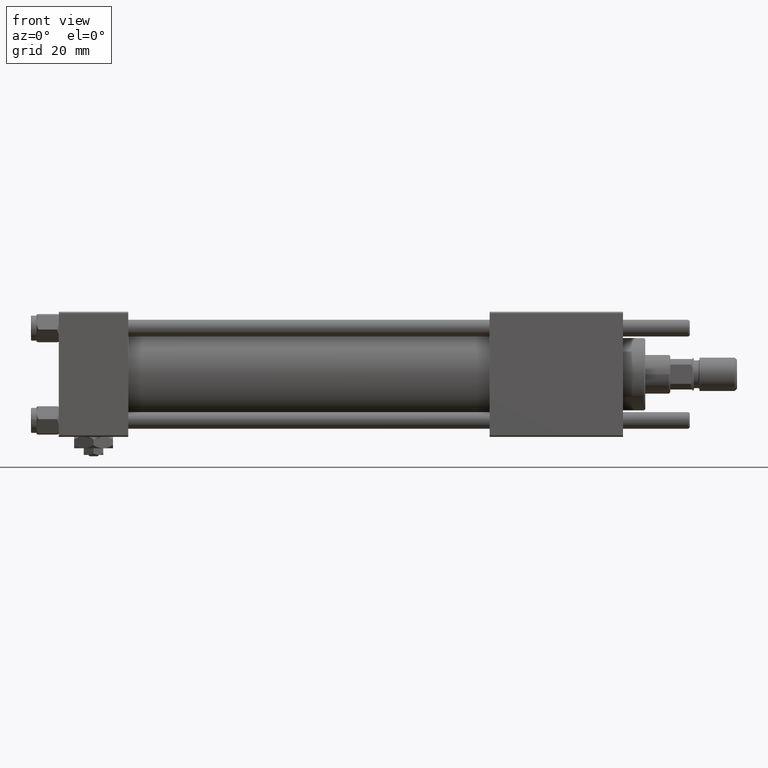
[diagram: clean part render]
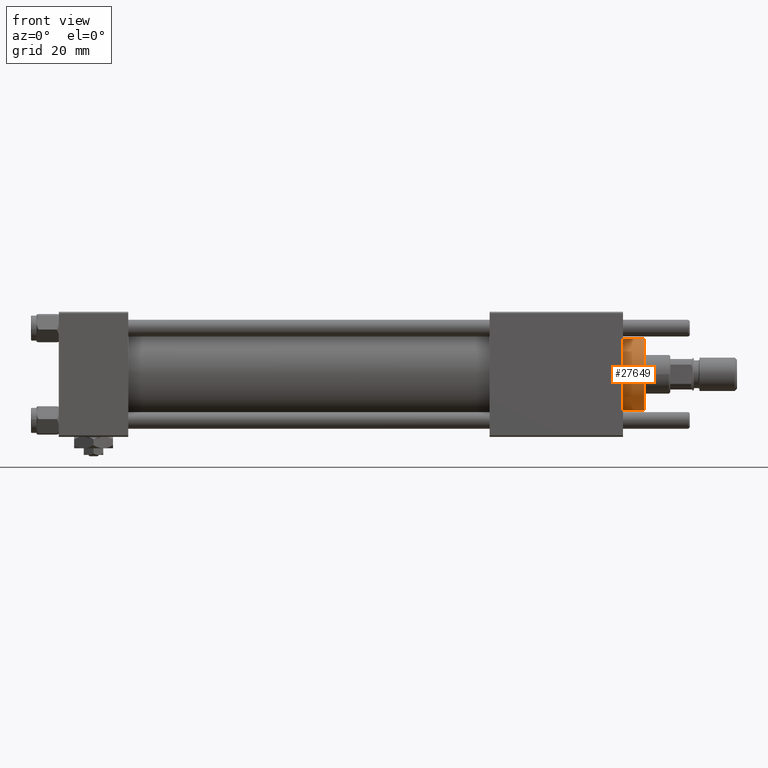
[diagram: same view with one face highlighted and labeled with its STEP entity id]
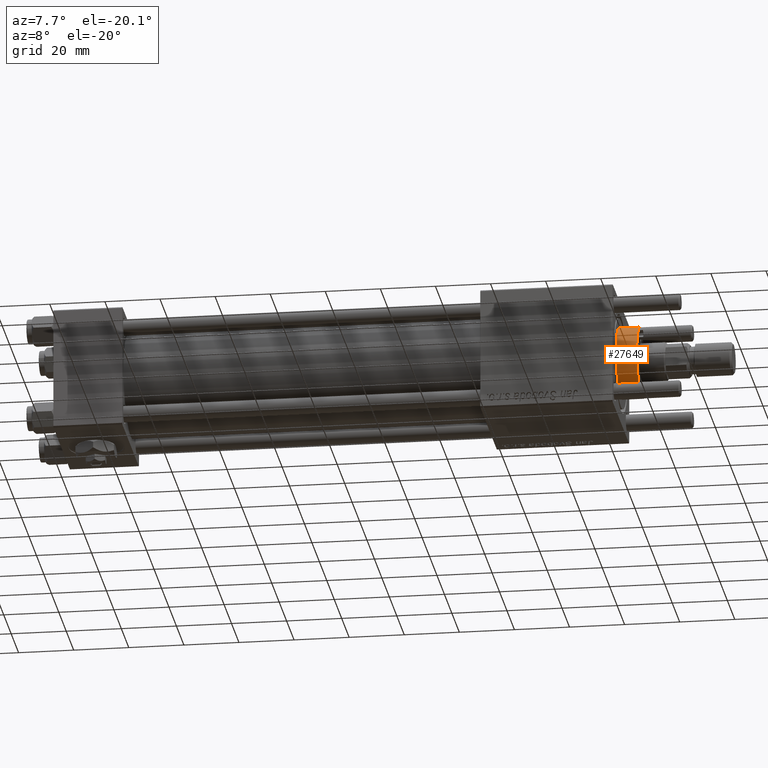
[diagram: same view with one face highlighted and labeled with its STEP entity id]
A machine part, front view. The second image highlights one B-rep face of the part: STEP entity #27649.
A second angle (auxiliary view) of the same face is appended — the face is thin or edge-on in the first view.
In plain terms, the highlighted cylindrical surface (edge-blend (fillet) strip) has radius 13 mm, axis along (-1, -0, 0).
Its self-contained STEP definition (entity closure, byte-faithful):
#4014 = CARTESIAN_POINT ( 'NONE',  ( 0.000000000000000000, 0.000000000000000000, 36.20000000000000995 ) ) ;
#4850 = CARTESIAN_POINT ( 'NONE',  ( 13.00000000000000178, 1.592040838891559293E-15, 28.69999999999999929 ) ) ;
#5829 = ORIENTED_EDGE ( 'NONE', *, *, #38313, .T. ) ;
#8219 = EDGE_CURVE ( 'NONE', #51070, #35967, #58279, .T. ) ;
#8709 = CIRCLE ( 'NONE', #12512, 13.00000000000000178 ) ;
#9312 = ORIENTED_EDGE ( 'NONE', *, *, #42970, .T. ) ;
#11312 = CYLINDRICAL_SURFACE ( 'NONE', #52282, 13.00000000000000178 ) ;
#11467 = CARTESIAN_POINT ( 'NONE',  ( -13.00000000000000178, 0.000000000000000000, 36.20000000000000995 ) ) ;
#12512 = AXIS2_PLACEMENT_3D ( 'NONE', #4014, #41641, #18346 ) ;
#15277 = CARTESIAN_POINT ( 'NONE',  ( -13.00000000000000178, 0.000000000000000000, 28.69999999999999929 ) ) ;
#16483 = CIRCLE ( 'NONE', #39363, 13.00000000000000178 ) ;
#18346 = DIRECTION ( 'NONE',  ( 1.000000000000000000, 0.000000000000000000, 0.000000000000000000 ) ) ;
#20268 = DIRECTION ( 'NONE',  ( -0.000000000000000000, -0.000000000000000000, -1.000000000000000000 ) ) ;
#20862 = DIRECTION ( 'NONE',  ( -1.000000000000000000, 0.000000000000000000, 0.000000000000000000 ) ) ;
#22530 = EDGE_CURVE ( 'NONE', #28185, #35967, #16483, .T. ) ;
#24745 = CARTESIAN_POINT ( 'NONE',  ( 0.000000000000000000, 0.000000000000000000, 36.69999999999999574 ) ) ;
#27649 = ADVANCED_FACE ( 'NONE', ( #30151 ), #11312, .T. ) ;
#27877 = VERTEX_POINT ( 'NONE', #11467 ) ;
#28185 = VERTEX_POINT ( 'NONE', #15277 ) ;
#28526 = VECTOR ( 'NONE', #55547, 1000.000000000000000 ) ;
#30151 = FACE_OUTER_BOUND ( 'NONE', #50852, .T. ) ;
#30883 = DIRECTION ( 'NONE',  ( 0.000000000000000000, 0.000000000000000000, 1.000000000000000000 ) ) ;
#31176 = DIRECTION ( 'NONE',  ( 1.000000000000000000, 0.000000000000000000, 0.000000000000000000 ) ) ;
#35967 = VERTEX_POINT ( 'NONE', #4850 ) ;
#38313 = EDGE_CURVE ( 'NONE', #51070, #27877, #8709, .T. ) ;
#38326 = LINE ( 'NONE', #43378, #47073 ) ;
#39363 = AXIS2_PLACEMENT_3D ( 'NONE', #58119, #30883, #31176 ) ;
#41578 = ORIENTED_EDGE ( 'NONE', *, *, #22530, .T. ) ;
#41641 = DIRECTION ( 'NONE',  ( 0.000000000000000000, 0.000000000000000000, -1.000000000000000000 ) ) ;
#42970 = EDGE_CURVE ( 'NONE', #27877, #28185, #38326, .T. ) ;
#43378 = CARTESIAN_POINT ( 'NONE',  ( -13.00000000000000178, 0.000000000000000000, 36.69999999999999574 ) ) ;
#46258 = CARTESIAN_POINT ( 'NONE',  ( 13.00000000000000178, 1.592040838891559293E-15, 36.69999999999999574 ) ) ;
#47073 = VECTOR ( 'NONE', #52372, 1000.000000000000000 ) ;
#50852 = EDGE_LOOP ( 'NONE', ( #53065, #5829, #9312, #41578 ) ) ;
#51070 = VERTEX_POINT ( 'NONE', #57892 ) ;
#52282 = AXIS2_PLACEMENT_3D ( 'NONE', #24745, #20268, #20862 ) ;
#52372 = DIRECTION ( 'NONE',  ( -0.000000000000000000, -0.000000000000000000, -1.000000000000000000 ) ) ;
#53065 = ORIENTED_EDGE ( 'NONE', *, *, #8219, .F. ) ;
#55547 = DIRECTION ( 'NONE',  ( -0.000000000000000000, -0.000000000000000000, -1.000000000000000000 ) ) ;
#57892 = CARTESIAN_POINT ( 'NONE',  ( 13.00000000000000178, 1.592040838891559293E-15, 36.20000000000000995 ) ) ;
#58119 = CARTESIAN_POINT ( 'NONE',  ( 0.000000000000000000, 0.000000000000000000, 28.69999999999999929 ) ) ;
#58279 = LINE ( 'NONE', #46258, #28526 ) ;